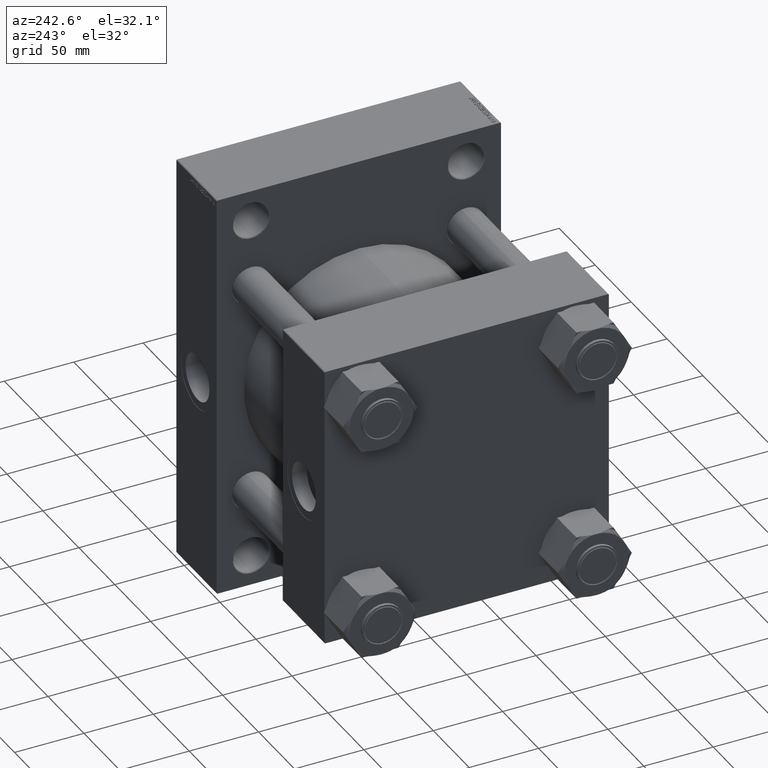
[diagram: clean part render]
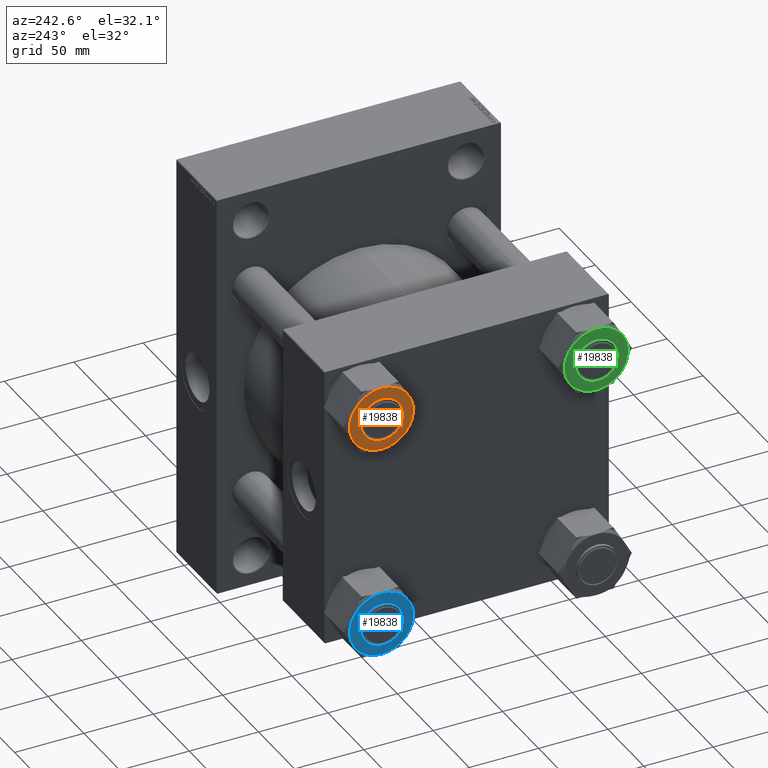
[diagram: same view with three faces highlighted in distinct colors, each labeled with its STEP entity id]
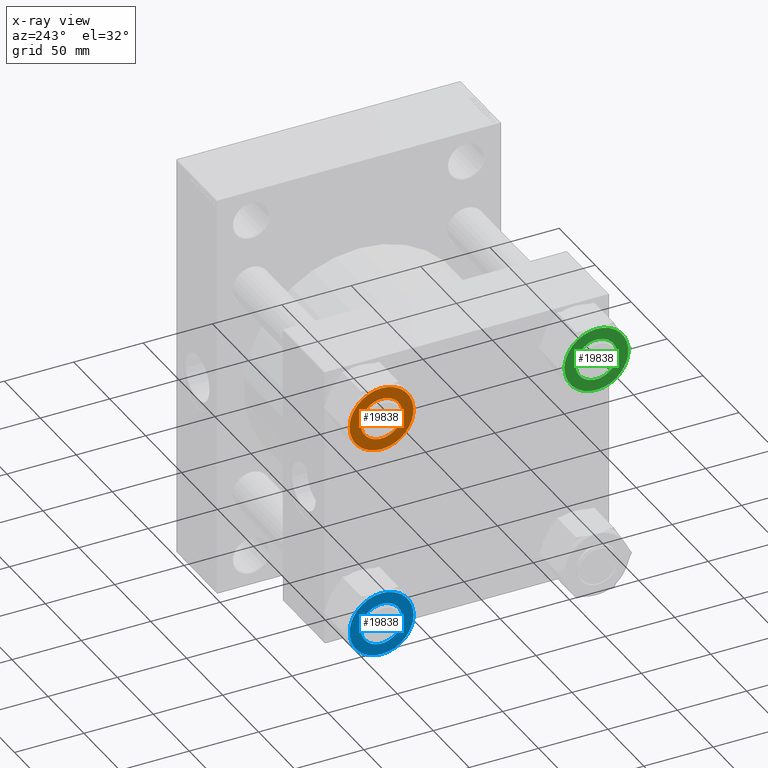
[diagram: x-ray of the same camera — body ghosted, the three highlighted faces saturated]
A machine part, auxiliary view with three faces highlighted in distinct colors.
The next image is the same camera in x-ray (body ghosted, the three faces saturated) — at least one of them is partly hidden behind the body in this view.
Their STEP definitions:

[orange] entity #19838 — the highlighted planar face has unit normal (1, 0, 0).
#671 = CIRCLE ( 'NONE', #22195, 23.05359624874176916 ) ;
#915 = DIRECTION ( 'NONE',  ( -1.000000000000000000, 0.000000000000000000, -0.000000000000000000 ) ) ;
#1136 = ORIENTED_EDGE ( 'NONE', *, *, #33051, .F. ) ;
#2610 = DIRECTION ( 'NONE',  ( 1.000000000000000000, 0.000000000000000000, 0.000000000000000000 ) ) ;
#2718 = CARTESIAN_POINT ( 'NONE',  ( 0.000000000000000000, 0.000000000000000000, 0.000000000000000000 ) ) ;
#3096 = DIRECTION ( 'NONE',  ( 0.000000000000000000, 0.000000000000000000, 1.000000000000000000 ) ) ;
#3176 = PLANE ( 'NONE',  #18632 ) ;
#4313 = CARTESIAN_POINT ( 'NONE',  ( -19.96500000000001407, 11.52679812437088813, 0.000000000000000000 ) ) ;
#4415 = CIRCLE ( 'NONE', #11452, 23.05359624874176916 ) ;
#6094 = CARTESIAN_POINT ( 'NONE',  ( 0.000000000000000000, 0.000000000000000000, 0.000000000000000000 ) ) ;
#6213 = ORIENTED_EDGE ( 'NONE', *, *, #7246, .F. ) ;
#7246 = EDGE_CURVE ( 'NONE', #26388, #17693, #28395, .T. ) ;
#7957 = CARTESIAN_POINT ( 'NONE',  ( 19.96500000000001762, 11.52679812437088458, 0.000000000000000000 ) ) ;
#10483 = EDGE_CURVE ( 'NONE', #38084, #18192, #30789, .T. ) ;
#10665 = DIRECTION ( 'NONE',  ( 0.000000000000000000, -0.000000000000000000, -1.000000000000000000 ) ) ;
#11211 = VERTEX_POINT ( 'NONE', #24462 ) ;
#11452 = AXIS2_PLACEMENT_3D ( 'NONE', #2718, #10665, #27613 ) ;
#11518 = CARTESIAN_POINT ( 'NONE',  ( -15.00000000000000000, 0.000000000000000000, 0.000000000000000000 ) ) ;
#12587 = CARTESIAN_POINT ( 'NONE',  ( 0.000000000000000000, 0.000000000000000000, 0.000000000000000000 ) ) ;
#13147 = DIRECTION ( 'NONE',  ( -1.000000000000000000, 0.000000000000000000, 0.000000000000000000 ) ) ;
#13867 = CARTESIAN_POINT ( 'NONE',  ( 0.000000000000000000, 0.000000000000000000, 0.000000000000000000 ) ) ;
#14425 = CIRCLE ( 'NONE', #23666, 15.00000000000000000 ) ;
#14714 = CARTESIAN_POINT ( 'NONE',  ( 15.00000000000000000, 1.836970198721029589E-15, 0.000000000000000000 ) ) ;
#14749 = VERTEX_POINT ( 'NONE', #4313 ) ;
#15388 = FACE_OUTER_BOUND ( 'NONE', #16737, .T. ) ;
#16737 = EDGE_LOOP ( 'NONE', ( #43729, #27898, #1136, #21633, #6213, #44015, #24128 ) ) ;
#17693 = VERTEX_POINT ( 'NONE', #24965 ) ;
#17890 = DIRECTION ( 'NONE',  ( -1.000000000000000000, 0.000000000000000000, 0.000000000000000000 ) ) ;
#18165 = VERTEX_POINT ( 'NONE', #7957 ) ;
#18192 = VERTEX_POINT ( 'NONE', #14714 ) ;
#18632 = AXIS2_PLACEMENT_3D ( 'NONE', #25341, #43423, #915 ) ;
#19319 = VERTEX_POINT ( 'NONE', #30488 ) ;
#19838 = ADVANCED_FACE ( 'NONE', ( #33703, #15388 ), #3176, .F. ) ;
#20270 = EDGE_CURVE ( 'NONE', #11211, #14749, #39475, .T. ) ;
#20304 = DIRECTION ( 'NONE',  ( 1.000000000000000000, 0.000000000000000000, 0.000000000000000000 ) ) ;
#21045 = AXIS2_PLACEMENT_3D ( 'NONE', #35265, #32367, #24406 ) ;
#21633 = ORIENTED_EDGE ( 'NONE', *, *, #45502, .F. ) ;
#22195 = AXIS2_PLACEMENT_3D ( 'NONE', #36230, #38481, #17890 ) ;
#22850 = CIRCLE ( 'NONE', #29026, 23.05359624874176916 ) ;
#23666 = AXIS2_PLACEMENT_3D ( 'NONE', #43341, #3096, #2610 ) ;
#23717 = EDGE_CURVE ( 'NONE', #18165, #19319, #45056, .T. ) ;
#24128 = ORIENTED_EDGE ( 'NONE', *, *, #23717, .T. ) ;
#24406 = DIRECTION ( 'NONE',  ( -1.000000000000000000, 0.000000000000000000, 0.000000000000000000 ) ) ;
#24462 = CARTESIAN_POINT ( 'NONE',  ( -19.96500000000001762, -11.52679812437087747, 0.000000000000000000 ) ) ;
#24834 = AXIS2_PLACEMENT_3D ( 'NONE', #31212, #38212, #41583 ) ;
#24905 = CIRCLE ( 'NONE', #21045, 23.05359624874176916 ) ;
#24965 = CARTESIAN_POINT ( 'NONE',  ( 19.96500000000001407, -11.52679812437088813, 0.000000000000000000 ) ) ;
#25341 = CARTESIAN_POINT ( 'NONE',  ( 0.000000000000000000, 0.000000000000000000, 0.000000000000000000 ) ) ;
#26057 = AXIS2_PLACEMENT_3D ( 'NONE', #12587, #27289, #41997 ) ;
#26388 = VERTEX_POINT ( 'NONE', #30765 ) ;
#27289 = DIRECTION ( 'NONE',  ( 0.000000000000000000, -0.000000000000000000, -1.000000000000000000 ) ) ;
#27545 = DIRECTION ( 'NONE',  ( 0.000000000000000000, 0.000000000000000000, 1.000000000000000000 ) ) ;
#27613 = DIRECTION ( 'NONE',  ( -1.000000000000000000, 0.000000000000000000, 0.000000000000000000 ) ) ;
#27898 = ORIENTED_EDGE ( 'NONE', *, *, #20270, .F. ) ;
#28395 = CIRCLE ( 'NONE', #26057, 23.05359624874176916 ) ;
#28498 = AXIS2_PLACEMENT_3D ( 'NONE', #6094, #27545, #20304 ) ;
#28645 = EDGE_LOOP ( 'NONE', ( #33449, #42762 ) ) ;
#29026 = AXIS2_PLACEMENT_3D ( 'NONE', #13867, #35569, #13147 ) ;
#29567 = CARTESIAN_POINT ( 'NONE',  ( 3.004629197474320035E-15, -23.05359624874177271, 0.000000000000000000 ) ) ;
#30488 = CARTESIAN_POINT ( 'NONE',  ( 0.000000000000000000, 23.05359624874177271, 0.000000000000000000 ) ) ;
#30765 = CARTESIAN_POINT ( 'NONE',  ( 23.05359624874176916, 0.000000000000000000, 0.000000000000000000 ) ) ;
#30789 = CIRCLE ( 'NONE', #28498, 15.00000000000000000 ) ;
#31212 = CARTESIAN_POINT ( 'NONE',  ( 0.000000000000000000, 0.000000000000000000, 0.000000000000000000 ) ) ;
#31745 = VERTEX_POINT ( 'NONE', #29567 ) ;
#32367 = DIRECTION ( 'NONE',  ( 0.000000000000000000, -0.000000000000000000, -1.000000000000000000 ) ) ;
#33051 = EDGE_CURVE ( 'NONE', #31745, #11211, #24905, .T. ) ;
#33449 = ORIENTED_EDGE ( 'NONE', *, *, #10483, .F. ) ;
#33703 = FACE_BOUND ( 'NONE', #28645, .T. ) ;
#35265 = CARTESIAN_POINT ( 'NONE',  ( 0.000000000000000000, 0.000000000000000000, 0.000000000000000000 ) ) ;
#35400 = DIRECTION ( 'NONE',  ( 1.000000000000000000, 0.000000000000000000, 0.000000000000000000 ) ) ;
#35569 = DIRECTION ( 'NONE',  ( 0.000000000000000000, -0.000000000000000000, -1.000000000000000000 ) ) ;
#36230 = CARTESIAN_POINT ( 'NONE',  ( 0.000000000000000000, 0.000000000000000000, 0.000000000000000000 ) ) ;
#38084 = VERTEX_POINT ( 'NONE', #11518 ) ;
#38212 = DIRECTION ( 'NONE',  ( 0.000000000000000000, -0.000000000000000000, -1.000000000000000000 ) ) ;
#38481 = DIRECTION ( 'NONE',  ( 0.000000000000000000, -0.000000000000000000, -1.000000000000000000 ) ) ;
#39028 = DIRECTION ( 'NONE',  ( 0.000000000000000000, 0.000000000000000000, 1.000000000000000000 ) ) ;
#39475 = CIRCLE ( 'NONE', #24834, 23.05359624874176916 ) ;
#41522 = EDGE_CURVE ( 'NONE', #14749, #19319, #22850, .T. ) ;
#41583 = DIRECTION ( 'NONE',  ( -1.000000000000000000, 0.000000000000000000, 0.000000000000000000 ) ) ;
#41997 = DIRECTION ( 'NONE',  ( -1.000000000000000000, 0.000000000000000000, 0.000000000000000000 ) ) ;
#42762 = ORIENTED_EDGE ( 'NONE', *, *, #46980, .F. ) ;
#42858 = CARTESIAN_POINT ( 'NONE',  ( 0.000000000000000000, 0.000000000000000000, 0.000000000000000000 ) ) ;
#43341 = CARTESIAN_POINT ( 'NONE',  ( 0.000000000000000000, 0.000000000000000000, 0.000000000000000000 ) ) ;
#43423 = DIRECTION ( 'NONE',  ( 0.000000000000000000, 0.000000000000000000, -1.000000000000000000 ) ) ;
#43729 = ORIENTED_EDGE ( 'NONE', *, *, #41522, .F. ) ;
#44015 = ORIENTED_EDGE ( 'NONE', *, *, #45580, .F. ) ;
#45056 = CIRCLE ( 'NONE', #46585, 23.05359624874177271 ) ;
#45502 = EDGE_CURVE ( 'NONE', #17693, #31745, #4415, .T. ) ;
#45580 = EDGE_CURVE ( 'NONE', #18165, #26388, #671, .T. ) ;
#46585 = AXIS2_PLACEMENT_3D ( 'NONE', #42858, #39028, #35400 ) ;
#46980 = EDGE_CURVE ( 'NONE', #18192, #38084, #14425, .T. ) ;

[blue] entity #19838 — the highlighted planar face has unit normal (1, 0, 0).
#671 = CIRCLE ( 'NONE', #22195, 23.05359624874176916 ) ;
#915 = DIRECTION ( 'NONE',  ( -1.000000000000000000, 0.000000000000000000, -0.000000000000000000 ) ) ;
#1136 = ORIENTED_EDGE ( 'NONE', *, *, #33051, .F. ) ;
#2610 = DIRECTION ( 'NONE',  ( 1.000000000000000000, 0.000000000000000000, 0.000000000000000000 ) ) ;
#2718 = CARTESIAN_POINT ( 'NONE',  ( 0.000000000000000000, 0.000000000000000000, 0.000000000000000000 ) ) ;
#3096 = DIRECTION ( 'NONE',  ( 0.000000000000000000, 0.000000000000000000, 1.000000000000000000 ) ) ;
#3176 = PLANE ( 'NONE',  #18632 ) ;
#4313 = CARTESIAN_POINT ( 'NONE',  ( -19.96500000000001407, 11.52679812437088813, 0.000000000000000000 ) ) ;
#4415 = CIRCLE ( 'NONE', #11452, 23.05359624874176916 ) ;
#6094 = CARTESIAN_POINT ( 'NONE',  ( 0.000000000000000000, 0.000000000000000000, 0.000000000000000000 ) ) ;
#6213 = ORIENTED_EDGE ( 'NONE', *, *, #7246, .F. ) ;
#7246 = EDGE_CURVE ( 'NONE', #26388, #17693, #28395, .T. ) ;
#7957 = CARTESIAN_POINT ( 'NONE',  ( 19.96500000000001762, 11.52679812437088458, 0.000000000000000000 ) ) ;
#10483 = EDGE_CURVE ( 'NONE', #38084, #18192, #30789, .T. ) ;
#10665 = DIRECTION ( 'NONE',  ( 0.000000000000000000, -0.000000000000000000, -1.000000000000000000 ) ) ;
#11211 = VERTEX_POINT ( 'NONE', #24462 ) ;
#11452 = AXIS2_PLACEMENT_3D ( 'NONE', #2718, #10665, #27613 ) ;
#11518 = CARTESIAN_POINT ( 'NONE',  ( -15.00000000000000000, 0.000000000000000000, 0.000000000000000000 ) ) ;
#12587 = CARTESIAN_POINT ( 'NONE',  ( 0.000000000000000000, 0.000000000000000000, 0.000000000000000000 ) ) ;
#13147 = DIRECTION ( 'NONE',  ( -1.000000000000000000, 0.000000000000000000, 0.000000000000000000 ) ) ;
#13867 = CARTESIAN_POINT ( 'NONE',  ( 0.000000000000000000, 0.000000000000000000, 0.000000000000000000 ) ) ;
#14425 = CIRCLE ( 'NONE', #23666, 15.00000000000000000 ) ;
#14714 = CARTESIAN_POINT ( 'NONE',  ( 15.00000000000000000, 1.836970198721029589E-15, 0.000000000000000000 ) ) ;
#14749 = VERTEX_POINT ( 'NONE', #4313 ) ;
#15388 = FACE_OUTER_BOUND ( 'NONE', #16737, .T. ) ;
#16737 = EDGE_LOOP ( 'NONE', ( #43729, #27898, #1136, #21633, #6213, #44015, #24128 ) ) ;
#17693 = VERTEX_POINT ( 'NONE', #24965 ) ;
#17890 = DIRECTION ( 'NONE',  ( -1.000000000000000000, 0.000000000000000000, 0.000000000000000000 ) ) ;
#18165 = VERTEX_POINT ( 'NONE', #7957 ) ;
#18192 = VERTEX_POINT ( 'NONE', #14714 ) ;
#18632 = AXIS2_PLACEMENT_3D ( 'NONE', #25341, #43423, #915 ) ;
#19319 = VERTEX_POINT ( 'NONE', #30488 ) ;
#19838 = ADVANCED_FACE ( 'NONE', ( #33703, #15388 ), #3176, .F. ) ;
#20270 = EDGE_CURVE ( 'NONE', #11211, #14749, #39475, .T. ) ;
#20304 = DIRECTION ( 'NONE',  ( 1.000000000000000000, 0.000000000000000000, 0.000000000000000000 ) ) ;
#21045 = AXIS2_PLACEMENT_3D ( 'NONE', #35265, #32367, #24406 ) ;
#21633 = ORIENTED_EDGE ( 'NONE', *, *, #45502, .F. ) ;
#22195 = AXIS2_PLACEMENT_3D ( 'NONE', #36230, #38481, #17890 ) ;
#22850 = CIRCLE ( 'NONE', #29026, 23.05359624874176916 ) ;
#23666 = AXIS2_PLACEMENT_3D ( 'NONE', #43341, #3096, #2610 ) ;
#23717 = EDGE_CURVE ( 'NONE', #18165, #19319, #45056, .T. ) ;
#24128 = ORIENTED_EDGE ( 'NONE', *, *, #23717, .T. ) ;
#24406 = DIRECTION ( 'NONE',  ( -1.000000000000000000, 0.000000000000000000, 0.000000000000000000 ) ) ;
#24462 = CARTESIAN_POINT ( 'NONE',  ( -19.96500000000001762, -11.52679812437087747, 0.000000000000000000 ) ) ;
#24834 = AXIS2_PLACEMENT_3D ( 'NONE', #31212, #38212, #41583 ) ;
#24905 = CIRCLE ( 'NONE', #21045, 23.05359624874176916 ) ;
#24965 = CARTESIAN_POINT ( 'NONE',  ( 19.96500000000001407, -11.52679812437088813, 0.000000000000000000 ) ) ;
#25341 = CARTESIAN_POINT ( 'NONE',  ( 0.000000000000000000, 0.000000000000000000, 0.000000000000000000 ) ) ;
#26057 = AXIS2_PLACEMENT_3D ( 'NONE', #12587, #27289, #41997 ) ;
#26388 = VERTEX_POINT ( 'NONE', #30765 ) ;
#27289 = DIRECTION ( 'NONE',  ( 0.000000000000000000, -0.000000000000000000, -1.000000000000000000 ) ) ;
#27545 = DIRECTION ( 'NONE',  ( 0.000000000000000000, 0.000000000000000000, 1.000000000000000000 ) ) ;
#27613 = DIRECTION ( 'NONE',  ( -1.000000000000000000, 0.000000000000000000, 0.000000000000000000 ) ) ;
#27898 = ORIENTED_EDGE ( 'NONE', *, *, #20270, .F. ) ;
#28395 = CIRCLE ( 'NONE', #26057, 23.05359624874176916 ) ;
#28498 = AXIS2_PLACEMENT_3D ( 'NONE', #6094, #27545, #20304 ) ;
#28645 = EDGE_LOOP ( 'NONE', ( #33449, #42762 ) ) ;
#29026 = AXIS2_PLACEMENT_3D ( 'NONE', #13867, #35569, #13147 ) ;
#29567 = CARTESIAN_POINT ( 'NONE',  ( 3.004629197474320035E-15, -23.05359624874177271, 0.000000000000000000 ) ) ;
#30488 = CARTESIAN_POINT ( 'NONE',  ( 0.000000000000000000, 23.05359624874177271, 0.000000000000000000 ) ) ;
#30765 = CARTESIAN_POINT ( 'NONE',  ( 23.05359624874176916, 0.000000000000000000, 0.000000000000000000 ) ) ;
#30789 = CIRCLE ( 'NONE', #28498, 15.00000000000000000 ) ;
#31212 = CARTESIAN_POINT ( 'NONE',  ( 0.000000000000000000, 0.000000000000000000, 0.000000000000000000 ) ) ;
#31745 = VERTEX_POINT ( 'NONE', #29567 ) ;
#32367 = DIRECTION ( 'NONE',  ( 0.000000000000000000, -0.000000000000000000, -1.000000000000000000 ) ) ;
#33051 = EDGE_CURVE ( 'NONE', #31745, #11211, #24905, .T. ) ;
#33449 = ORIENTED_EDGE ( 'NONE', *, *, #10483, .F. ) ;
#33703 = FACE_BOUND ( 'NONE', #28645, .T. ) ;
#35265 = CARTESIAN_POINT ( 'NONE',  ( 0.000000000000000000, 0.000000000000000000, 0.000000000000000000 ) ) ;
#35400 = DIRECTION ( 'NONE',  ( 1.000000000000000000, 0.000000000000000000, 0.000000000000000000 ) ) ;
#35569 = DIRECTION ( 'NONE',  ( 0.000000000000000000, -0.000000000000000000, -1.000000000000000000 ) ) ;
#36230 = CARTESIAN_POINT ( 'NONE',  ( 0.000000000000000000, 0.000000000000000000, 0.000000000000000000 ) ) ;
#38084 = VERTEX_POINT ( 'NONE', #11518 ) ;
#38212 = DIRECTION ( 'NONE',  ( 0.000000000000000000, -0.000000000000000000, -1.000000000000000000 ) ) ;
#38481 = DIRECTION ( 'NONE',  ( 0.000000000000000000, -0.000000000000000000, -1.000000000000000000 ) ) ;
#39028 = DIRECTION ( 'NONE',  ( 0.000000000000000000, 0.000000000000000000, 1.000000000000000000 ) ) ;
#39475 = CIRCLE ( 'NONE', #24834, 23.05359624874176916 ) ;
#41522 = EDGE_CURVE ( 'NONE', #14749, #19319, #22850, .T. ) ;
#41583 = DIRECTION ( 'NONE',  ( -1.000000000000000000, 0.000000000000000000, 0.000000000000000000 ) ) ;
#41997 = DIRECTION ( 'NONE',  ( -1.000000000000000000, 0.000000000000000000, 0.000000000000000000 ) ) ;
#42762 = ORIENTED_EDGE ( 'NONE', *, *, #46980, .F. ) ;
#42858 = CARTESIAN_POINT ( 'NONE',  ( 0.000000000000000000, 0.000000000000000000, 0.000000000000000000 ) ) ;
#43341 = CARTESIAN_POINT ( 'NONE',  ( 0.000000000000000000, 0.000000000000000000, 0.000000000000000000 ) ) ;
#43423 = DIRECTION ( 'NONE',  ( 0.000000000000000000, 0.000000000000000000, -1.000000000000000000 ) ) ;
#43729 = ORIENTED_EDGE ( 'NONE', *, *, #41522, .F. ) ;
#44015 = ORIENTED_EDGE ( 'NONE', *, *, #45580, .F. ) ;
#45056 = CIRCLE ( 'NONE', #46585, 23.05359624874177271 ) ;
#45502 = EDGE_CURVE ( 'NONE', #17693, #31745, #4415, .T. ) ;
#45580 = EDGE_CURVE ( 'NONE', #18165, #26388, #671, .T. ) ;
#46585 = AXIS2_PLACEMENT_3D ( 'NONE', #42858, #39028, #35400 ) ;
#46980 = EDGE_CURVE ( 'NONE', #18192, #38084, #14425, .T. ) ;

[green] entity #19838 — the highlighted planar face has unit normal (1, 0, 0).
#671 = CIRCLE ( 'NONE', #22195, 23.05359624874176916 ) ;
#915 = DIRECTION ( 'NONE',  ( -1.000000000000000000, 0.000000000000000000, -0.000000000000000000 ) ) ;
#1136 = ORIENTED_EDGE ( 'NONE', *, *, #33051, .F. ) ;
#2610 = DIRECTION ( 'NONE',  ( 1.000000000000000000, 0.000000000000000000, 0.000000000000000000 ) ) ;
#2718 = CARTESIAN_POINT ( 'NONE',  ( 0.000000000000000000, 0.000000000000000000, 0.000000000000000000 ) ) ;
#3096 = DIRECTION ( 'NONE',  ( 0.000000000000000000, 0.000000000000000000, 1.000000000000000000 ) ) ;
#3176 = PLANE ( 'NONE',  #18632 ) ;
#4313 = CARTESIAN_POINT ( 'NONE',  ( -19.96500000000001407, 11.52679812437088813, 0.000000000000000000 ) ) ;
#4415 = CIRCLE ( 'NONE', #11452, 23.05359624874176916 ) ;
#6094 = CARTESIAN_POINT ( 'NONE',  ( 0.000000000000000000, 0.000000000000000000, 0.000000000000000000 ) ) ;
#6213 = ORIENTED_EDGE ( 'NONE', *, *, #7246, .F. ) ;
#7246 = EDGE_CURVE ( 'NONE', #26388, #17693, #28395, .T. ) ;
#7957 = CARTESIAN_POINT ( 'NONE',  ( 19.96500000000001762, 11.52679812437088458, 0.000000000000000000 ) ) ;
#10483 = EDGE_CURVE ( 'NONE', #38084, #18192, #30789, .T. ) ;
#10665 = DIRECTION ( 'NONE',  ( 0.000000000000000000, -0.000000000000000000, -1.000000000000000000 ) ) ;
#11211 = VERTEX_POINT ( 'NONE', #24462 ) ;
#11452 = AXIS2_PLACEMENT_3D ( 'NONE', #2718, #10665, #27613 ) ;
#11518 = CARTESIAN_POINT ( 'NONE',  ( -15.00000000000000000, 0.000000000000000000, 0.000000000000000000 ) ) ;
#12587 = CARTESIAN_POINT ( 'NONE',  ( 0.000000000000000000, 0.000000000000000000, 0.000000000000000000 ) ) ;
#13147 = DIRECTION ( 'NONE',  ( -1.000000000000000000, 0.000000000000000000, 0.000000000000000000 ) ) ;
#13867 = CARTESIAN_POINT ( 'NONE',  ( 0.000000000000000000, 0.000000000000000000, 0.000000000000000000 ) ) ;
#14425 = CIRCLE ( 'NONE', #23666, 15.00000000000000000 ) ;
#14714 = CARTESIAN_POINT ( 'NONE',  ( 15.00000000000000000, 1.836970198721029589E-15, 0.000000000000000000 ) ) ;
#14749 = VERTEX_POINT ( 'NONE', #4313 ) ;
#15388 = FACE_OUTER_BOUND ( 'NONE', #16737, .T. ) ;
#16737 = EDGE_LOOP ( 'NONE', ( #43729, #27898, #1136, #21633, #6213, #44015, #24128 ) ) ;
#17693 = VERTEX_POINT ( 'NONE', #24965 ) ;
#17890 = DIRECTION ( 'NONE',  ( -1.000000000000000000, 0.000000000000000000, 0.000000000000000000 ) ) ;
#18165 = VERTEX_POINT ( 'NONE', #7957 ) ;
#18192 = VERTEX_POINT ( 'NONE', #14714 ) ;
#18632 = AXIS2_PLACEMENT_3D ( 'NONE', #25341, #43423, #915 ) ;
#19319 = VERTEX_POINT ( 'NONE', #30488 ) ;
#19838 = ADVANCED_FACE ( 'NONE', ( #33703, #15388 ), #3176, .F. ) ;
#20270 = EDGE_CURVE ( 'NONE', #11211, #14749, #39475, .T. ) ;
#20304 = DIRECTION ( 'NONE',  ( 1.000000000000000000, 0.000000000000000000, 0.000000000000000000 ) ) ;
#21045 = AXIS2_PLACEMENT_3D ( 'NONE', #35265, #32367, #24406 ) ;
#21633 = ORIENTED_EDGE ( 'NONE', *, *, #45502, .F. ) ;
#22195 = AXIS2_PLACEMENT_3D ( 'NONE', #36230, #38481, #17890 ) ;
#22850 = CIRCLE ( 'NONE', #29026, 23.05359624874176916 ) ;
#23666 = AXIS2_PLACEMENT_3D ( 'NONE', #43341, #3096, #2610 ) ;
#23717 = EDGE_CURVE ( 'NONE', #18165, #19319, #45056, .T. ) ;
#24128 = ORIENTED_EDGE ( 'NONE', *, *, #23717, .T. ) ;
#24406 = DIRECTION ( 'NONE',  ( -1.000000000000000000, 0.000000000000000000, 0.000000000000000000 ) ) ;
#24462 = CARTESIAN_POINT ( 'NONE',  ( -19.96500000000001762, -11.52679812437087747, 0.000000000000000000 ) ) ;
#24834 = AXIS2_PLACEMENT_3D ( 'NONE', #31212, #38212, #41583 ) ;
#24905 = CIRCLE ( 'NONE', #21045, 23.05359624874176916 ) ;
#24965 = CARTESIAN_POINT ( 'NONE',  ( 19.96500000000001407, -11.52679812437088813, 0.000000000000000000 ) ) ;
#25341 = CARTESIAN_POINT ( 'NONE',  ( 0.000000000000000000, 0.000000000000000000, 0.000000000000000000 ) ) ;
#26057 = AXIS2_PLACEMENT_3D ( 'NONE', #12587, #27289, #41997 ) ;
#26388 = VERTEX_POINT ( 'NONE', #30765 ) ;
#27289 = DIRECTION ( 'NONE',  ( 0.000000000000000000, -0.000000000000000000, -1.000000000000000000 ) ) ;
#27545 = DIRECTION ( 'NONE',  ( 0.000000000000000000, 0.000000000000000000, 1.000000000000000000 ) ) ;
#27613 = DIRECTION ( 'NONE',  ( -1.000000000000000000, 0.000000000000000000, 0.000000000000000000 ) ) ;
#27898 = ORIENTED_EDGE ( 'NONE', *, *, #20270, .F. ) ;
#28395 = CIRCLE ( 'NONE', #26057, 23.05359624874176916 ) ;
#28498 = AXIS2_PLACEMENT_3D ( 'NONE', #6094, #27545, #20304 ) ;
#28645 = EDGE_LOOP ( 'NONE', ( #33449, #42762 ) ) ;
#29026 = AXIS2_PLACEMENT_3D ( 'NONE', #13867, #35569, #13147 ) ;
#29567 = CARTESIAN_POINT ( 'NONE',  ( 3.004629197474320035E-15, -23.05359624874177271, 0.000000000000000000 ) ) ;
#30488 = CARTESIAN_POINT ( 'NONE',  ( 0.000000000000000000, 23.05359624874177271, 0.000000000000000000 ) ) ;
#30765 = CARTESIAN_POINT ( 'NONE',  ( 23.05359624874176916, 0.000000000000000000, 0.000000000000000000 ) ) ;
#30789 = CIRCLE ( 'NONE', #28498, 15.00000000000000000 ) ;
#31212 = CARTESIAN_POINT ( 'NONE',  ( 0.000000000000000000, 0.000000000000000000, 0.000000000000000000 ) ) ;
#31745 = VERTEX_POINT ( 'NONE', #29567 ) ;
#32367 = DIRECTION ( 'NONE',  ( 0.000000000000000000, -0.000000000000000000, -1.000000000000000000 ) ) ;
#33051 = EDGE_CURVE ( 'NONE', #31745, #11211, #24905, .T. ) ;
#33449 = ORIENTED_EDGE ( 'NONE', *, *, #10483, .F. ) ;
#33703 = FACE_BOUND ( 'NONE', #28645, .T. ) ;
#35265 = CARTESIAN_POINT ( 'NONE',  ( 0.000000000000000000, 0.000000000000000000, 0.000000000000000000 ) ) ;
#35400 = DIRECTION ( 'NONE',  ( 1.000000000000000000, 0.000000000000000000, 0.000000000000000000 ) ) ;
#35569 = DIRECTION ( 'NONE',  ( 0.000000000000000000, -0.000000000000000000, -1.000000000000000000 ) ) ;
#36230 = CARTESIAN_POINT ( 'NONE',  ( 0.000000000000000000, 0.000000000000000000, 0.000000000000000000 ) ) ;
#38084 = VERTEX_POINT ( 'NONE', #11518 ) ;
#38212 = DIRECTION ( 'NONE',  ( 0.000000000000000000, -0.000000000000000000, -1.000000000000000000 ) ) ;
#38481 = DIRECTION ( 'NONE',  ( 0.000000000000000000, -0.000000000000000000, -1.000000000000000000 ) ) ;
#39028 = DIRECTION ( 'NONE',  ( 0.000000000000000000, 0.000000000000000000, 1.000000000000000000 ) ) ;
#39475 = CIRCLE ( 'NONE', #24834, 23.05359624874176916 ) ;
#41522 = EDGE_CURVE ( 'NONE', #14749, #19319, #22850, .T. ) ;
#41583 = DIRECTION ( 'NONE',  ( -1.000000000000000000, 0.000000000000000000, 0.000000000000000000 ) ) ;
#41997 = DIRECTION ( 'NONE',  ( -1.000000000000000000, 0.000000000000000000, 0.000000000000000000 ) ) ;
#42762 = ORIENTED_EDGE ( 'NONE', *, *, #46980, .F. ) ;
#42858 = CARTESIAN_POINT ( 'NONE',  ( 0.000000000000000000, 0.000000000000000000, 0.000000000000000000 ) ) ;
#43341 = CARTESIAN_POINT ( 'NONE',  ( 0.000000000000000000, 0.000000000000000000, 0.000000000000000000 ) ) ;
#43423 = DIRECTION ( 'NONE',  ( 0.000000000000000000, 0.000000000000000000, -1.000000000000000000 ) ) ;
#43729 = ORIENTED_EDGE ( 'NONE', *, *, #41522, .F. ) ;
#44015 = ORIENTED_EDGE ( 'NONE', *, *, #45580, .F. ) ;
#45056 = CIRCLE ( 'NONE', #46585, 23.05359624874177271 ) ;
#45502 = EDGE_CURVE ( 'NONE', #17693, #31745, #4415, .T. ) ;
#45580 = EDGE_CURVE ( 'NONE', #18165, #26388, #671, .T. ) ;
#46585 = AXIS2_PLACEMENT_3D ( 'NONE', #42858, #39028, #35400 ) ;
#46980 = EDGE_CURVE ( 'NONE', #18192, #38084, #14425, .T. ) ;